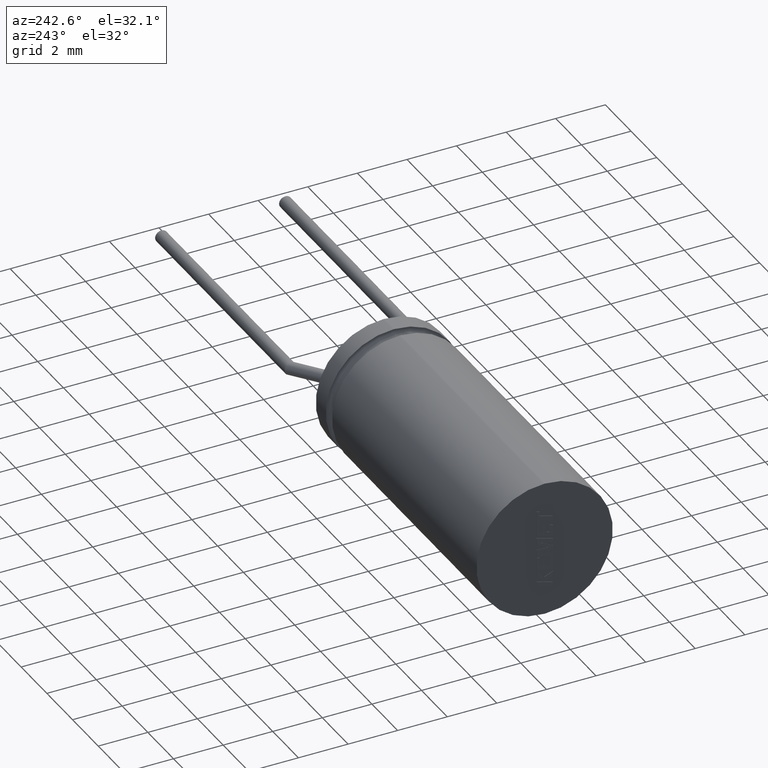
[diagram: clean part render]
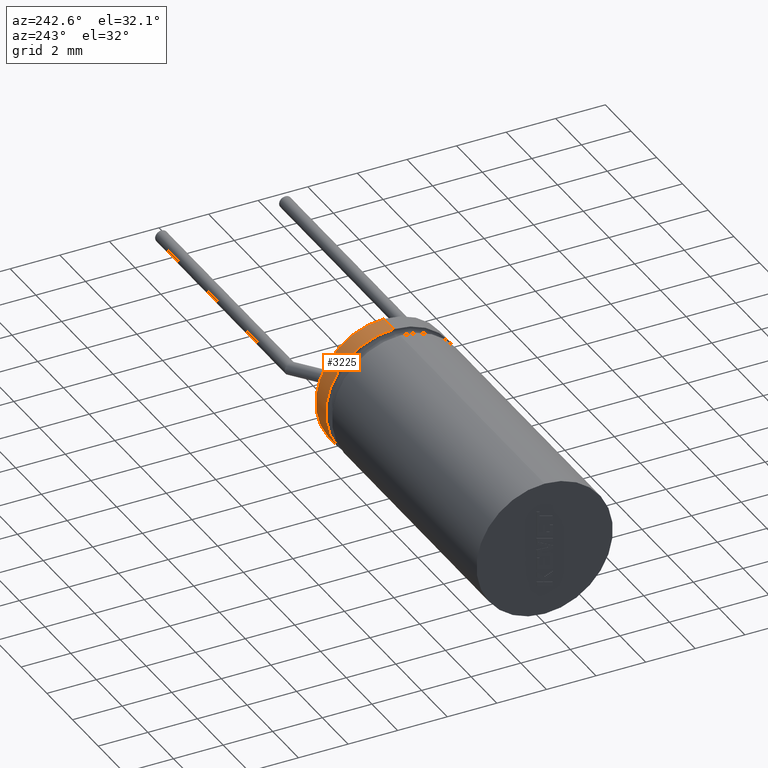
[diagram: same view with one face highlighted and labeled with its STEP entity id]
A machine part, auxiliary view. The second image highlights one B-rep face of the part: STEP entity #3225.
In plain terms, the highlighted cylindrical surface (partial cylindrical patch) has radius 2.75 mm, axis along (-1, -0, -0).
Its self-contained STEP definition (entity closure, byte-faithful):
#62 = DIRECTION ( 'NONE',  ( 0.0000000000000000000, 0.0000000000000000000, 1.000000000000000000 ) ) ;
#231 = EDGE_CURVE ( 'NONE', #2403, #2471, #2596, .T. ) ;
#336 = DIRECTION ( 'NONE',  ( -1.000000000000000000, -0.0000000000000000000, -0.0000000000000000000 ) ) ;
#531 = VERTEX_POINT ( 'NONE', #1262 ) ;
#564 = ORIENTED_EDGE ( 'NONE', *, *, #1911, .T. ) ;
#582 = CARTESIAN_POINT ( 'NONE',  ( 12.50000000000000000, 0.0000000000000000000, 2.750000000000000000 ) ) ;
#691 = VECTOR ( 'NONE', #1519, 1000.000000000000000 ) ;
#701 = VERTEX_POINT ( 'NONE', #1620 ) ;
#888 = AXIS2_PLACEMENT_3D ( 'NONE', #3484, #336, #62 ) ;
#1019 = EDGE_CURVE ( 'NONE', #701, #2403, #1091, .T. ) ;
#1091 = CIRCLE ( 'NONE', #2901, 2.750000000000000000 ) ;
#1262 = CARTESIAN_POINT ( 'NONE',  ( 11.72395000000000000, 3.367778697655221000E-016, -2.750000000000000000 ) ) ;
#1519 = DIRECTION ( 'NONE',  ( -1.000000000000000000, -0.0000000000000000000, -0.0000000000000000000 ) ) ;
#1588 = ORIENTED_EDGE ( 'NONE', *, *, #1019, .F. ) ;
#1594 = DIRECTION ( 'NONE',  ( 0.0000000000000000000, 0.0000000000000000000, -1.000000000000000000 ) ) ;
#1620 = CARTESIAN_POINT ( 'NONE',  ( 12.50000000000000000, 3.367778697655221000E-016, -2.750000000000000000 ) ) ;
#1747 = CARTESIAN_POINT ( 'NONE',  ( 12.50000000000000000, 3.367778697655221000E-016, -2.750000000000000000 ) ) ;
#1774 = FACE_OUTER_BOUND ( 'NONE', #3529, .T. ) ;
#1911 = EDGE_CURVE ( 'NONE', #531, #2471, #3192, .T. ) ;
#1952 = DIRECTION ( 'NONE',  ( -1.000000000000000000, -0.0000000000000000000, -0.0000000000000000000 ) ) ;
#2140 = CARTESIAN_POINT ( 'NONE',  ( 11.72395000000000000, 0.0000000000000000000, 0.0000000000000000000 ) ) ;
#2248 = AXIS2_PLACEMENT_3D ( 'NONE', #2140, #3305, #1594 ) ;
#2403 = VERTEX_POINT ( 'NONE', #582 ) ;
#2405 = DIRECTION ( 'NONE',  ( 0.0000000000000000000, 0.0000000000000000000, -1.000000000000000000 ) ) ;
#2471 = VERTEX_POINT ( 'NONE', #3532 ) ;
#2534 = ORIENTED_EDGE ( 'NONE', *, *, #3496, .T. ) ;
#2596 = LINE ( 'NONE', #3212, #691 ) ;
#2703 = DIRECTION ( 'NONE',  ( 1.000000000000000000, 0.0000000000000000000, 0.0000000000000000000 ) ) ;
#2709 = VECTOR ( 'NONE', #1952, 1000.000000000000000 ) ;
#2901 = AXIS2_PLACEMENT_3D ( 'NONE', #3569, #2703, #2405 ) ;
#3192 = CIRCLE ( 'NONE', #2248, 2.750000000000000000 ) ;
#3212 = CARTESIAN_POINT ( 'NONE',  ( 12.50000000000000000, 0.0000000000000000000, 2.750000000000000000 ) ) ;
#3225 = ADVANCED_FACE ( 'NONE', ( #1774 ), #3386, .T. ) ;
#3305 = DIRECTION ( 'NONE',  ( 1.000000000000000000, -0.0000000000000000000, -0.0000000000000000000 ) ) ;
#3386 = CYLINDRICAL_SURFACE ( 'NONE', #888, 2.750000000000000000 ) ;
#3459 = LINE ( 'NONE', #1747, #2709 ) ;
#3484 = CARTESIAN_POINT ( 'NONE',  ( 12.50000000000000000, 0.0000000000000000000, 0.0000000000000000000 ) ) ;
#3496 = EDGE_CURVE ( 'NONE', #701, #531, #3459, .T. ) ;
#3529 = EDGE_LOOP ( 'NONE', ( #1588, #2534, #564, #3652 ) ) ;
#3532 = CARTESIAN_POINT ( 'NONE',  ( 11.72395000000000000, 0.0000000000000000000, 2.750000000000000000 ) ) ;
#3569 = CARTESIAN_POINT ( 'NONE',  ( 12.50000000000000000, 0.0000000000000000000, 0.0000000000000000000 ) ) ;
#3652 = ORIENTED_EDGE ( 'NONE', *, *, #231, .F. ) ;